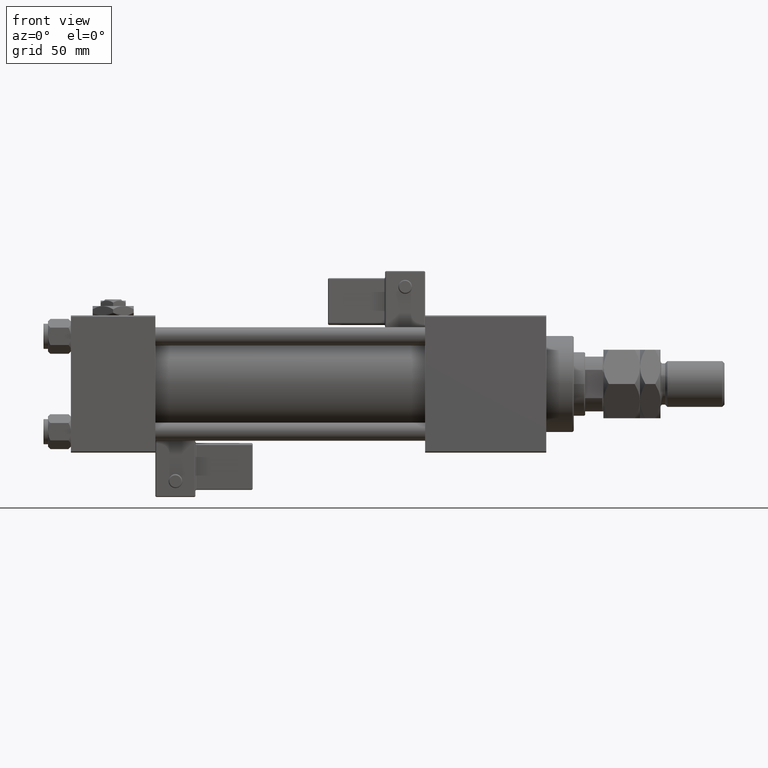
[diagram: clean part render]
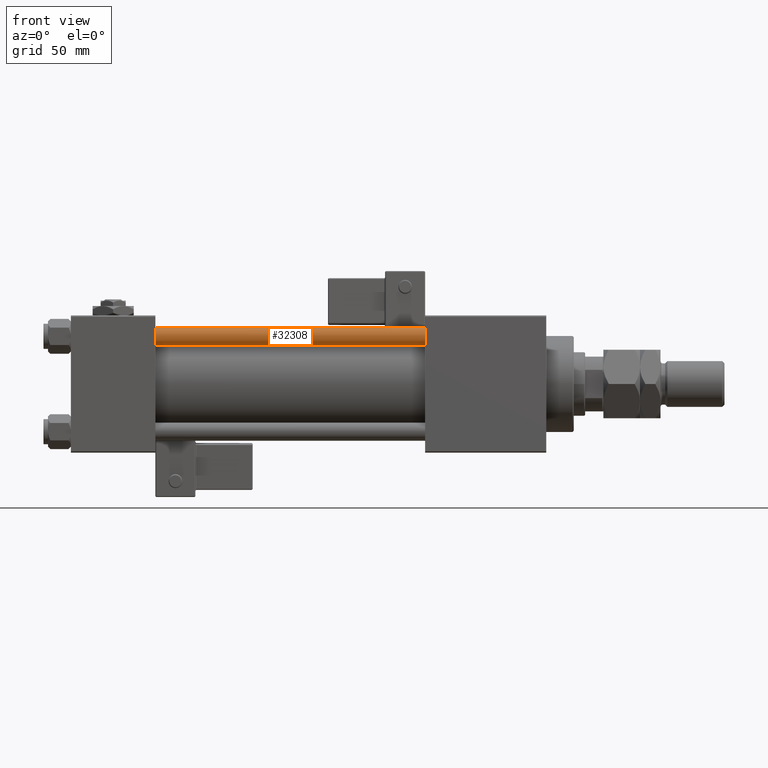
[diagram: same view with one face highlighted and labeled with its STEP entity id]
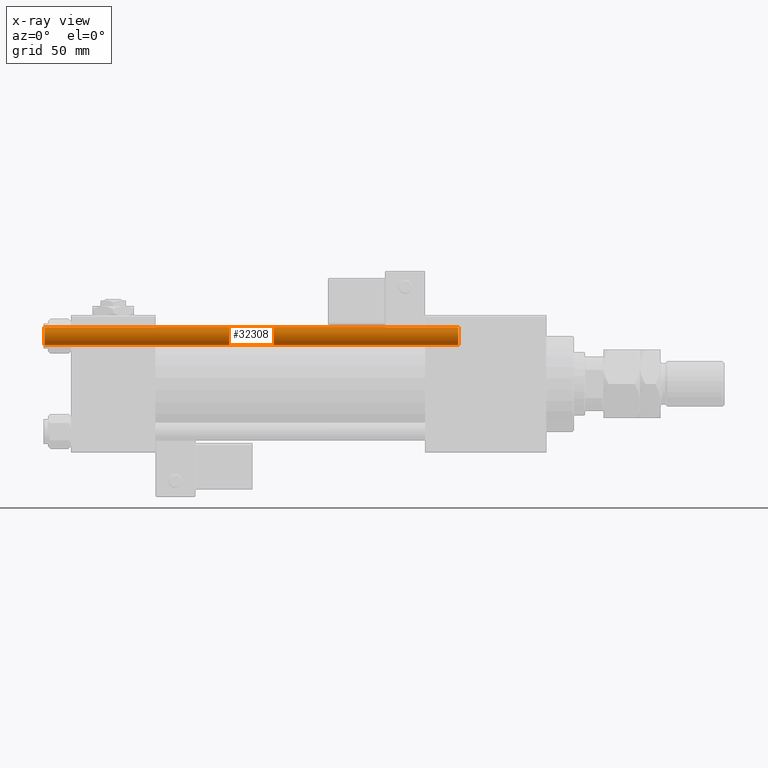
[diagram: x-ray of the same camera — body ghosted, the highlighted face saturated]
A machine part, front view. The second image highlights one B-rep face of the part: STEP entity #32308.
The next image is the same camera in x-ray: the body ghosted, the highlighted face saturated — about 0% of this face is hidden behind the body in this view.
In plain terms, the highlighted cylindrical surface (edge-blend (fillet) strip) has radius 4 mm, axis along (1, 0, -0).
Its self-contained STEP definition (entity closure, byte-faithful):
#306 = EDGE_CURVE ( 'NONE', #536, #24962, #49827, .T. ) ;
#536 = VERTEX_POINT ( 'NONE', #34840 ) ;
#3384 = DIRECTION ( 'NONE',  ( 1.000000000000000000, 0.000000000000000000, 0.000000000000000000 ) ) ;
#7775 = CIRCLE ( 'NONE', #46541, 4.000000000000000000 ) ;
#9680 = DIRECTION ( 'NONE',  ( -1.000000000000000000, 0.000000000000000000, 0.000000000000000000 ) ) ;
#10736 = CIRCLE ( 'NONE', #44079, 4.000000000000000000 ) ;
#13102 = DIRECTION ( 'NONE',  ( -0.000000000000000000, -0.000000000000000000, 1.000000000000000000 ) ) ;
#15064 = VERTEX_POINT ( 'NONE', #26403 ) ;
#16174 = EDGE_LOOP ( 'NONE', ( #26936, #31200, #36035, #23602 ) ) ;
#16819 = EDGE_CURVE ( 'NONE', #24962, #42858, #10736, .T. ) ;
#23602 = ORIENTED_EDGE ( 'NONE', *, *, #50609, .F. ) ;
#24412 = CARTESIAN_POINT ( 'NONE',  ( -4.000000000000000000, 0.000000000000000000, 0.4999999999999726885 ) ) ;
#24962 = VERTEX_POINT ( 'NONE', #35350 ) ;
#26403 = CARTESIAN_POINT ( 'NONE',  ( -4.000000000000000000, 0.000000000000000000, 181.5000000000000284 ) ) ;
#26655 = DIRECTION ( 'NONE',  ( 1.000000000000000000, 0.000000000000000000, 0.000000000000000000 ) ) ;
#26936 = ORIENTED_EDGE ( 'NONE', *, *, #49694, .T. ) ;
#29621 = DIRECTION ( 'NONE',  ( 0.000000000000000000, 0.000000000000000000, -1.000000000000000000 ) ) ;
#29630 = LINE ( 'NONE', #46284, #50199 ) ;
#30570 = FACE_OUTER_BOUND ( 'NONE', #16174, .T. ) ;
#31200 = ORIENTED_EDGE ( 'NONE', *, *, #306, .T. ) ;
#32308 = ADVANCED_FACE ( 'NONE', ( #30570 ), #44108, .T. ) ;
#34840 = CARTESIAN_POINT ( 'NONE',  ( 4.000000000000000000, 4.898587196589412829E-16, 181.5000000000000284 ) ) ;
#35350 = CARTESIAN_POINT ( 'NONE',  ( 4.000000000000000000, 4.898587196589412829E-16, 0.4999999999999726885 ) ) ;
#35390 = CARTESIAN_POINT ( 'NONE',  ( 0.000000000000000000, 0.000000000000000000, 0.4999999999999726885 ) ) ;
#36035 = ORIENTED_EDGE ( 'NONE', *, *, #16819, .T. ) ;
#39318 = DIRECTION ( 'NONE',  ( -0.000000000000000000, -0.000000000000000000, -1.000000000000000000 ) ) ;
#42606 = DIRECTION ( 'NONE',  ( -0.000000000000000000, -0.000000000000000000, -1.000000000000000000 ) ) ;
#42858 = VERTEX_POINT ( 'NONE', #24412 ) ;
#43000 = CARTESIAN_POINT ( 'NONE',  ( 0.000000000000000000, 0.000000000000000000, 182.0000000000000000 ) ) ;
#44079 = AXIS2_PLACEMENT_3D ( 'NONE', #35390, #13102, #26655 ) ;
#44108 = CYLINDRICAL_SURFACE ( 'NONE', #45500, 4.000000000000000000 ) ;
#45500 = AXIS2_PLACEMENT_3D ( 'NONE', #43000, #39318, #9680 ) ;
#45618 = CARTESIAN_POINT ( 'NONE',  ( 4.000000000000000000, 4.898587196589412829E-16, 182.0000000000000000 ) ) ;
#46008 = CARTESIAN_POINT ( 'NONE',  ( 0.000000000000000000, 0.000000000000000000, 181.5000000000000284 ) ) ;
#46284 = CARTESIAN_POINT ( 'NONE',  ( -4.000000000000000000, 0.000000000000000000, 182.0000000000000000 ) ) ;
#46541 = AXIS2_PLACEMENT_3D ( 'NONE', #46008, #29621, #3384 ) ;
#49694 = EDGE_CURVE ( 'NONE', #15064, #536, #7775, .T. ) ;
#49827 = LINE ( 'NONE', #45618, #50567 ) ;
#50199 = VECTOR ( 'NONE', #42606, 1000.000000000000000 ) ;
#50567 = VECTOR ( 'NONE', #50918, 1000.000000000000000 ) ;
#50609 = EDGE_CURVE ( 'NONE', #15064, #42858, #29630, .T. ) ;
#50918 = DIRECTION ( 'NONE',  ( -0.000000000000000000, -0.000000000000000000, -1.000000000000000000 ) ) ;